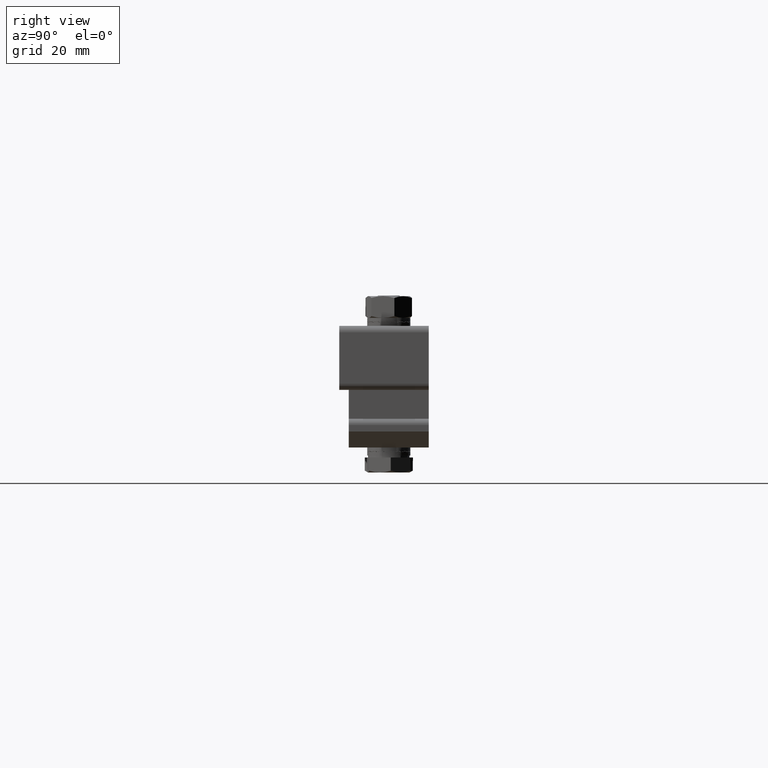
[diagram: clean part render]
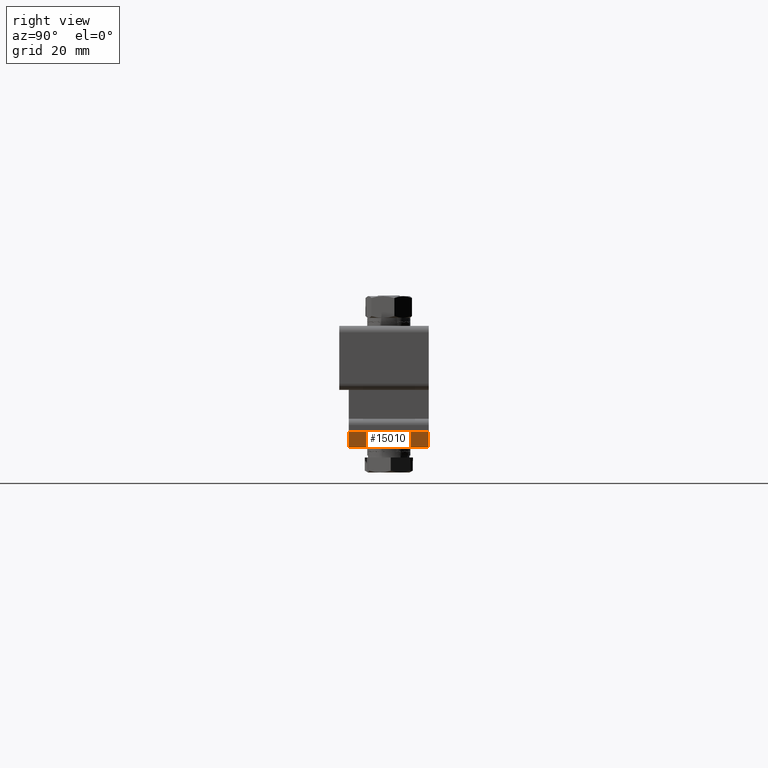
[diagram: same view with one face highlighted and labeled with its STEP entity id]
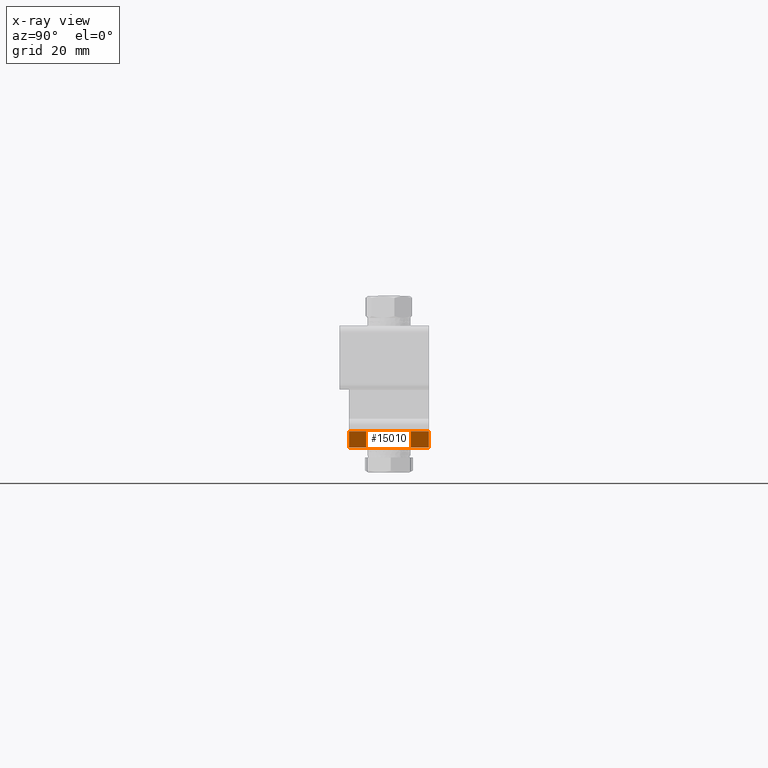
[diagram: x-ray of the same camera — body ghosted, the highlighted face saturated]
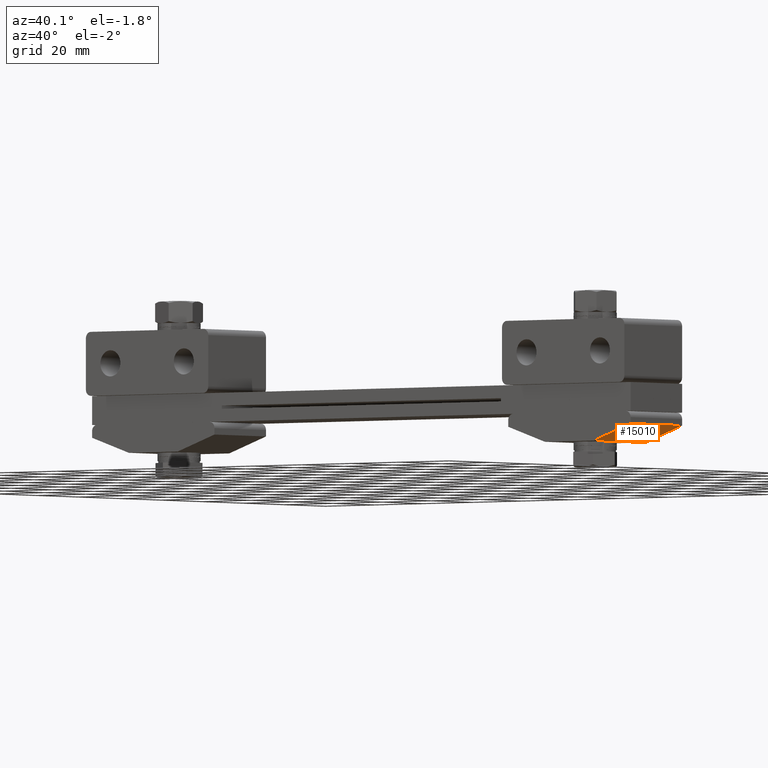
[diagram: same view with one face highlighted and labeled with its STEP entity id]
A machine part, right view. The second image highlights one B-rep face of the part: STEP entity #15010.
The next image is the same camera in x-ray: the body ghosted, the highlighted face saturated — about 0% of this face is hidden behind the body in this view.
A second angle (auxiliary view) of the same face is appended — the face is thin or edge-on in the first view.
In plain terms, the highlighted planar face has unit normal (-0.3162, 0, 0.9487).
Its self-contained STEP definition (entity closure, byte-faithful):
#541 = VECTOR ( 'NONE', #8892, 1000.000000000000000 ) ;
#1245 = EDGE_CURVE ( 'NONE', #3727, #7858, #8426, .T. ) ;
#2359 = ORIENTED_EDGE ( 'NONE', *, *, #1245, .F. ) ;
#2995 = CARTESIAN_POINT ( 'NONE',  ( 95.00000000000000000, -12.50000000000000000, -9.000000000000000000 ) ) ;
#3727 = VERTEX_POINT ( 'NONE', #11076 ) ;
#3948 = VERTEX_POINT ( 'NONE', #5880 ) ;
#5564 = CARTESIAN_POINT ( 'NONE',  ( 110.0000000000000000, -14.00000000000000000, -4.000000000000000000 ) ) ;
#5880 = CARTESIAN_POINT ( 'NONE',  ( 95.00000000000000000, -12.50000000000000000, -9.000000000000000000 ) ) ;
#5910 = VECTOR ( 'NONE', #7526, 999.9999999999998900 ) ;
#5984 = CARTESIAN_POINT ( 'NONE',  ( 95.00000000000000000, 12.50000000000000000, -9.000000000000000000 ) ) ;
#6201 = ORIENTED_EDGE ( 'NONE', *, *, #13596, .F. ) ;
#6851 = EDGE_CURVE ( 'NONE', #3948, #3727, #14346, .T. ) ;
#7391 = ORIENTED_EDGE ( 'NONE', *, *, #6851, .F. ) ;
#7526 = DIRECTION ( 'NONE',  ( -0.9486832980505137700, 0.0000000000000000000, -0.3162277660168380000 ) ) ;
#7858 = VERTEX_POINT ( 'NONE', #15713 ) ;
#7927 = PLANE ( 'NONE',  #12313 ) ;
#7937 = ORIENTED_EDGE ( 'NONE', *, *, #11574, .F. ) ;
#8426 = LINE ( 'NONE', #5564, #541 ) ;
#8887 = VERTEX_POINT ( 'NONE', #5984 ) ;
#8892 = DIRECTION ( 'NONE',  ( 0.0000000000000000000, 1.000000000000000000, 0.0000000000000000000 ) ) ;
#9197 = CARTESIAN_POINT ( 'NONE',  ( 66.19999999999998900, 12.50000000000000000, -18.59999999999999800 ) ) ;
#9440 = DIRECTION ( 'NONE',  ( 0.9486832980505138800, 0.0000000000000000000, 0.3162277660168380000 ) ) ;
#10395 = LINE ( 'NONE', #2995, #11661 ) ;
#10532 = CARTESIAN_POINT ( 'NONE',  ( 66.19999999999998900, -12.50000000000000000, -18.59999999999999800 ) ) ;
#10679 = FACE_OUTER_BOUND ( 'NONE', #13390, .T. ) ;
#11076 = CARTESIAN_POINT ( 'NONE',  ( 110.0000000000000000, -12.50000000000000000, -4.000000000000000000 ) ) ;
#11118 = DIRECTION ( 'NONE',  ( 0.0000000000000000000, -1.000000000000000000, 0.0000000000000000000 ) ) ;
#11574 = EDGE_CURVE ( 'NONE', #8887, #3948, #10395, .T. ) ;
#11661 = VECTOR ( 'NONE', #11118, 1000.000000000000000 ) ;
#12098 = DIRECTION ( 'NONE',  ( 0.9486832980505137700, 0.0000000000000000000, 0.3162277660168380000 ) ) ;
#12313 = AXIS2_PLACEMENT_3D ( 'NONE', #16068, #21041, #9440 ) ;
#13342 = VECTOR ( 'NONE', #12098, 999.9999999999998900 ) ;
#13390 = EDGE_LOOP ( 'NONE', ( #7937, #6201, #2359, #7391 ) ) ;
#13596 = EDGE_CURVE ( 'NONE', #7858, #8887, #16339, .T. ) ;
#14346 = LINE ( 'NONE', #10532, #13342 ) ;
#15010 = ADVANCED_FACE ( 'NONE', ( #10679 ), #7927, .F. ) ;
#15713 = CARTESIAN_POINT ( 'NONE',  ( 110.0000000000000000, 12.50000000000000000, -4.000000000000000000 ) ) ;
#16068 = CARTESIAN_POINT ( 'NONE',  ( 95.00000000000000000, -14.00000000000000000, -9.000000000000000000 ) ) ;
#16339 = LINE ( 'NONE', #9197, #5910 ) ;
#21041 = DIRECTION ( 'NONE',  ( -0.3162277660168380000, 0.0000000000000000000, 0.9486832980505138800 ) ) ;